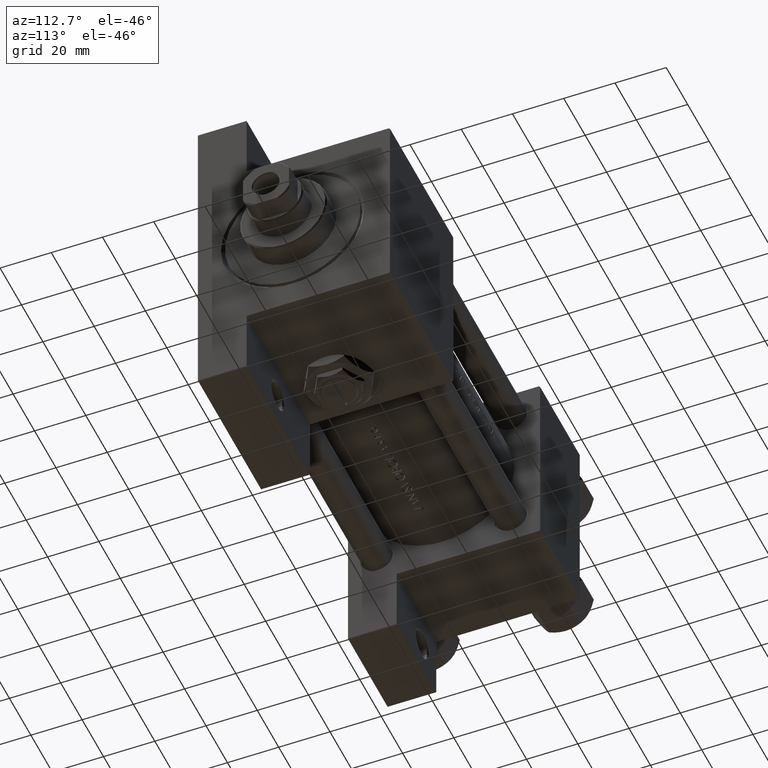
[diagram: clean part render]
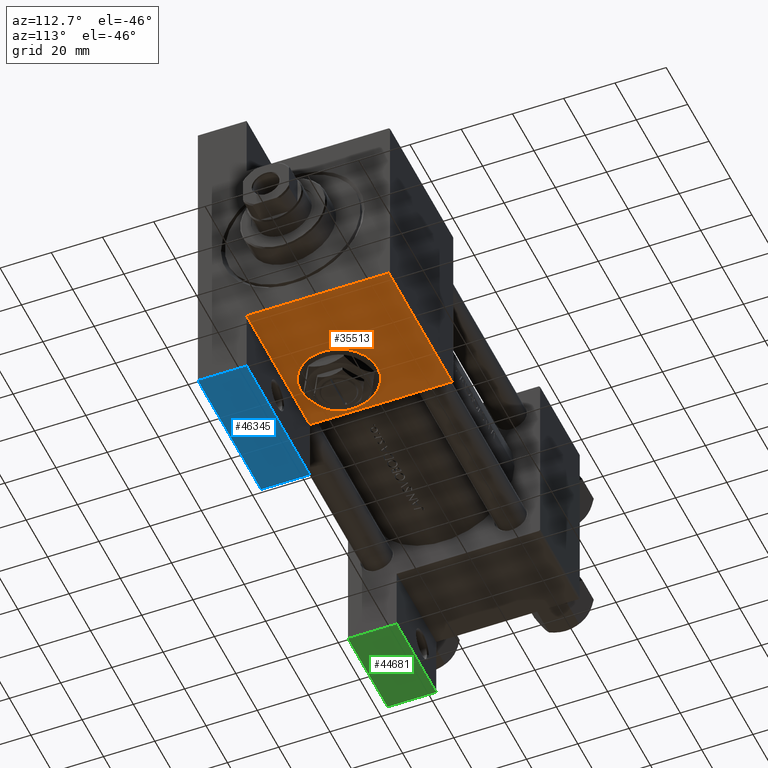
[diagram: same view with three faces highlighted in distinct colors, each labeled with its STEP entity id]
A machine part, auxiliary view with three faces highlighted in distinct colors.
Their STEP definitions:

[orange] entity #35513 — the highlighted planar face has unit normal (0, 0, -1).
#778 = ORIENTED_EDGE ( 'NONE', *, *, #10280, .F. ) ;
#1995 = VERTEX_POINT ( 'NONE', #36362 ) ;
#2141 = EDGE_CURVE ( 'NONE', #1995, #33826, #22647, .T. ) ;
#2231 = EDGE_LOOP ( 'NONE', ( #31377, #778 ) ) ;
#2783 = VECTOR ( 'NONE', #27722, 1000.000000000000000 ) ;
#3431 = CARTESIAN_POINT ( 'NONE',  ( 118.0000000000000000, 37.50000000000000000, 37.49999999999999289 ) ) ;
#3714 = CARTESIAN_POINT ( 'NONE',  ( 177.0000000000000000, 37.50000000000000000, 36.99999999999999289 ) ) ;
#6026 = CARTESIAN_POINT ( 'NONE',  ( 118.0000000000000000, 37.50000000000000000, -18.50000000000000000 ) ) ;
#6051 = VECTOR ( 'NONE', #37821, 1000.000000000000000 ) ;
#6586 = ORIENTED_EDGE ( 'NONE', *, *, #27930, .F. ) ;
#7001 = FACE_BOUND ( 'NONE', #2231, .T. ) ;
#7691 = CIRCLE ( 'NONE', #13239, 15.00000000000002487 ) ;
#7823 = AXIS2_PLACEMENT_3D ( 'NONE', #26921, #30149, #34117 ) ;
#7976 = PLANE ( 'NONE',  #7823 ) ;
#9575 = DIRECTION ( 'NONE',  ( 0.000000000000000000, 1.000000000000000000, 0.000000000000000000 ) ) ;
#9828 = DIRECTION ( 'NONE',  ( 0.000000000000000000, 0.000000000000000000, 1.000000000000000000 ) ) ;
#10280 = EDGE_CURVE ( 'NONE', #21302, #39748, #15742, .T. ) ;
#11021 = VECTOR ( 'NONE', #21219, 1000.000000000000000 ) ;
#11490 = EDGE_CURVE ( 'NONE', #31481, #27708, #47364, .T. ) ;
#12515 = LINE ( 'NONE', #24216, #2783 ) ;
#13239 = AXIS2_PLACEMENT_3D ( 'NONE', #22234, #38133, #37160 ) ;
#15742 = CIRCLE ( 'NONE', #39606, 15.00000000000002487 ) ;
#16141 = ORIENTED_EDGE ( 'NONE', *, *, #2141, .T. ) ;
#20366 = CARTESIAN_POINT ( 'NONE',  ( 177.0000000000000000, 37.50000000000000000, 36.99999999999999289 ) ) ;
#21219 = DIRECTION ( 'NONE',  ( -1.000000000000000000, 1.176083712526648949E-16, -0.000000000000000000 ) ) ;
#21302 = VERTEX_POINT ( 'NONE', #27846 ) ;
#22164 = ORIENTED_EDGE ( 'NONE', *, *, #25899, .T. ) ;
#22234 = CARTESIAN_POINT ( 'NONE',  ( 135.0000000000000000, 37.50000000000000000, 0.000000000000000000 ) ) ;
#22647 = LINE ( 'NONE', #3714, #6051 ) ;
#24216 = CARTESIAN_POINT ( 'NONE',  ( 177.0000000000000000, 37.50000000000000000, 37.49999999999999289 ) ) ;
#25899 = EDGE_CURVE ( 'NONE', #33826, #31481, #12515, .T. ) ;
#26350 = DIRECTION ( 'NONE',  ( 0.000000000000000000, 0.000000000000000000, -1.000000000000000000 ) ) ;
#26921 = CARTESIAN_POINT ( 'NONE',  ( 177.0000000000000000, 37.50000000000000000, 37.49999999999999289 ) ) ;
#27708 = VERTEX_POINT ( 'NONE', #36917 ) ;
#27722 = DIRECTION ( 'NONE',  ( 0.000000000000000000, 0.000000000000000000, -1.000000000000000000 ) ) ;
#27846 = CARTESIAN_POINT ( 'NONE',  ( 135.0000000000000000, 37.50000000000000000, -15.00000000000002487 ) ) ;
#27930 = EDGE_CURVE ( 'NONE', #1995, #27708, #32823, .T. ) ;
#30149 = DIRECTION ( 'NONE',  ( -0.000000000000000000, 1.000000000000000000, 0.000000000000000000 ) ) ;
#30747 = VECTOR ( 'NONE', #26350, 1000.000000000000000 ) ;
#31377 = ORIENTED_EDGE ( 'NONE', *, *, #31483, .F. ) ;
#31481 = VERTEX_POINT ( 'NONE', #34157 ) ;
#31483 = EDGE_CURVE ( 'NONE', #39748, #21302, #7691, .T. ) ;
#32823 = LINE ( 'NONE', #3431, #30747 ) ;
#33826 = VERTEX_POINT ( 'NONE', #20366 ) ;
#34078 = EDGE_LOOP ( 'NONE', ( #6586, #16141, #22164, #34766 ) ) ;
#34117 = DIRECTION ( 'NONE',  ( 0.000000000000000000, -0.000000000000000000, 1.000000000000000000 ) ) ;
#34157 = CARTESIAN_POINT ( 'NONE',  ( 177.0000000000000000, 37.49999999999999289, -18.50000000000000000 ) ) ;
#34766 = ORIENTED_EDGE ( 'NONE', *, *, #11490, .T. ) ;
#35513 = ADVANCED_FACE ( 'NONE', ( #7001, #41348 ), #7976, .T. ) ;
#35957 = CARTESIAN_POINT ( 'NONE',  ( 135.0000000000000000, 37.50000000000000000, 0.000000000000000000 ) ) ;
#36362 = CARTESIAN_POINT ( 'NONE',  ( 118.0000000000000000, 37.50000000000000000, 36.99999999999999289 ) ) ;
#36917 = CARTESIAN_POINT ( 'NONE',  ( 118.0000000000000000, 37.50000000000000000, -18.50000000000000355 ) ) ;
#37160 = DIRECTION ( 'NONE',  ( 0.000000000000000000, 0.000000000000000000, 1.000000000000000000 ) ) ;
#37821 = DIRECTION ( 'NONE',  ( 1.000000000000000000, 0.000000000000000000, 0.000000000000000000 ) ) ;
#38133 = DIRECTION ( 'NONE',  ( 0.000000000000000000, 1.000000000000000000, 0.000000000000000000 ) ) ;
#39606 = AXIS2_PLACEMENT_3D ( 'NONE', #35957, #9575, #9828 ) ;
#39748 = VERTEX_POINT ( 'NONE', #43332 ) ;
#41348 = FACE_OUTER_BOUND ( 'NONE', #34078, .T. ) ;
#43332 = CARTESIAN_POINT ( 'NONE',  ( 135.0000000000000000, 37.50000000000000000, 15.00000000000002487 ) ) ;
#47364 = LINE ( 'NONE', #6026, #11021 ) ;

[blue] entity #46345 — the highlighted planar face has unit normal (0, 0, -1).
#338 = LINE ( 'NONE', #8064, #26463 ) ;
#1353 = VERTEX_POINT ( 'NONE', #31371 ) ;
#1614 = ORIENTED_EDGE ( 'NONE', *, *, #6077, .T. ) ;
#3461 = VERTEX_POINT ( 'NONE', #45658 ) ;
#3773 = VECTOR ( 'NONE', #41249, 1000.000000000000000 ) ;
#6077 = EDGE_CURVE ( 'NONE', #27829, #1353, #31089, .T. ) ;
#6649 = ORIENTED_EDGE ( 'NONE', *, *, #33990, .F. ) ;
#7271 = LINE ( 'NONE', #34138, #31887 ) ;
#8057 = PLANE ( 'NONE',  #8859 ) ;
#8064 = CARTESIAN_POINT ( 'NONE',  ( 177.0000000000000284, 63.50000000000000000, -18.50000000000000000 ) ) ;
#8859 = AXIS2_PLACEMENT_3D ( 'NONE', #15283, #34196, #19500 ) ;
#15283 = CARTESIAN_POINT ( 'NONE',  ( 118.0000000000000000, 63.50000000000000000, -18.50000000000000000 ) ) ;
#17624 = CARTESIAN_POINT ( 'NONE',  ( 177.0000000000000284, 63.50000000000000000, -37.50000000000000000 ) ) ;
#19500 = DIRECTION ( 'NONE',  ( 0.000000000000000000, -0.000000000000000000, 1.000000000000000000 ) ) ;
#20181 = VERTEX_POINT ( 'NONE', #17624 ) ;
#20824 = EDGE_LOOP ( 'NONE', ( #6649, #27723, #1614, #43614 ) ) ;
#22287 = EDGE_CURVE ( 'NONE', #1353, #20181, #338, .T. ) ;
#23260 = DIRECTION ( 'NONE',  ( 0.000000000000000000, 0.000000000000000000, -1.000000000000000000 ) ) ;
#24354 = CARTESIAN_POINT ( 'NONE',  ( 118.0000000000000000, 63.50000000000000000, -18.50000000000000000 ) ) ;
#26463 = VECTOR ( 'NONE', #23260, 1000.000000000000000 ) ;
#27723 = ORIENTED_EDGE ( 'NONE', *, *, #45685, .F. ) ;
#27829 = VERTEX_POINT ( 'NONE', #40054 ) ;
#31089 = LINE ( 'NONE', #24354, #41923 ) ;
#31371 = CARTESIAN_POINT ( 'NONE',  ( 177.0000000000000284, 63.50000000000000000, -18.50000000000000000 ) ) ;
#31887 = VECTOR ( 'NONE', #42353, 1000.000000000000000 ) ;
#33990 = EDGE_CURVE ( 'NONE', #3461, #20181, #41727, .T. ) ;
#34138 = CARTESIAN_POINT ( 'NONE',  ( 118.0000000000000000, 63.50000000000000000, -18.50000000000000000 ) ) ;
#34196 = DIRECTION ( 'NONE',  ( -0.000000000000000000, 1.000000000000000000, 0.000000000000000000 ) ) ;
#40054 = CARTESIAN_POINT ( 'NONE',  ( 118.0000000000000000, 63.50000000000000000, -18.50000000000000000 ) ) ;
#41249 = DIRECTION ( 'NONE',  ( 1.000000000000000000, 0.000000000000000000, 0.000000000000000000 ) ) ;
#41727 = LINE ( 'NONE', #42222, #3773 ) ;
#41923 = VECTOR ( 'NONE', #47260, 1000.000000000000000 ) ;
#42222 = CARTESIAN_POINT ( 'NONE',  ( 118.0000000000000000, 63.50000000000000000, -37.50000000000000000 ) ) ;
#42353 = DIRECTION ( 'NONE',  ( 0.000000000000000000, 0.000000000000000000, -1.000000000000000000 ) ) ;
#42418 = FACE_OUTER_BOUND ( 'NONE', #20824, .T. ) ;
#43614 = ORIENTED_EDGE ( 'NONE', *, *, #22287, .T. ) ;
#45658 = CARTESIAN_POINT ( 'NONE',  ( 118.0000000000000000, 63.50000000000000000, -37.50000000000000000 ) ) ;
#45685 = EDGE_CURVE ( 'NONE', #27829, #3461, #7271, .T. ) ;
#46345 = ADVANCED_FACE ( 'NONE', ( #42418 ), #8057, .T. ) ;
#47260 = DIRECTION ( 'NONE',  ( 1.000000000000000000, 0.000000000000000000, 0.000000000000000000 ) ) ;

[green] entity #44681 — the highlighted planar face has unit normal (0, -0, -1).
#48 = ORIENTED_EDGE ( 'NONE', *, *, #7218, .F. ) ;
#2034 = CARTESIAN_POINT ( 'NONE',  ( 37.00000000000001421, 63.50000000000000000, -18.50000000000000355 ) ) ;
#2462 = ORIENTED_EDGE ( 'NONE', *, *, #37157, .F. ) ;
#4685 = DIRECTION ( 'NONE',  ( 0.000000000000000000, 1.000000000000000000, -1.734723475976806848E-16 ) ) ;
#6155 = CARTESIAN_POINT ( 'NONE',  ( 1.595073532467135441E-14, 63.50000000000000000, -18.50000000000000355 ) ) ;
#7218 = EDGE_CURVE ( 'NONE', #16228, #40859, #41470, .T. ) ;
#8000 = AXIS2_PLACEMENT_3D ( 'NONE', #38787, #4685, #45749 ) ;
#8415 = FACE_OUTER_BOUND ( 'NONE', #35604, .T. ) ;
#10364 = CARTESIAN_POINT ( 'NONE',  ( 1.595073532467135441E-14, 63.50000000000001421, 26.72167621838005047 ) ) ;
#10583 = VERTEX_POINT ( 'NONE', #2034 ) ;
#10878 = EDGE_CURVE ( 'NONE', #10583, #21524, #28829, .T. ) ;
#11873 = EDGE_CURVE ( 'NONE', #40859, #21524, #15641, .T. ) ;
#13865 = DIRECTION ( 'NONE',  ( 0.000000000000000000, -1.734723475976806848E-16, -1.000000000000000000 ) ) ;
#15641 = LINE ( 'NONE', #27374, #47604 ) ;
#16228 = VERTEX_POINT ( 'NONE', #28189 ) ;
#17486 = ORIENTED_EDGE ( 'NONE', *, *, #10878, .T. ) ;
#19467 = CARTESIAN_POINT ( 'NONE',  ( 1.595073532467135441E-14, 63.50000000000000000, -37.50000000000002132 ) ) ;
#19729 = VECTOR ( 'NONE', #13865, 1000.000000000000000 ) ;
#21524 = VERTEX_POINT ( 'NONE', #38925 ) ;
#22066 = DIRECTION ( 'NONE',  ( 0.000000000000000000, -1.734723475976806848E-16, -1.000000000000000000 ) ) ;
#27114 = PLANE ( 'NONE',  #8000 ) ;
#27374 = CARTESIAN_POINT ( 'NONE',  ( 1.595073532467135441E-14, 63.50000000000000000, -37.50000000000002132 ) ) ;
#28189 = CARTESIAN_POINT ( 'NONE',  ( 1.595073532467135441E-14, 63.50000000000000000, -18.50000000000000355 ) ) ;
#28829 = LINE ( 'NONE', #44477, #19729 ) ;
#29269 = VECTOR ( 'NONE', #22066, 1000.000000000000000 ) ;
#29315 = LINE ( 'NONE', #6155, #36475 ) ;
#35604 = EDGE_LOOP ( 'NONE', ( #2462, #17486, #43198, #48 ) ) ;
#36475 = VECTOR ( 'NONE', #36775, 1000.000000000000000 ) ;
#36775 = DIRECTION ( 'NONE',  ( -1.000000000000000000, 0.000000000000000000, 0.000000000000000000 ) ) ;
#37157 = EDGE_CURVE ( 'NONE', #10583, #16228, #29315, .T. ) ;
#38787 = CARTESIAN_POINT ( 'NONE',  ( 1.595073532467135441E-14, 63.50000000000001421, 26.72167621838005047 ) ) ;
#38925 = CARTESIAN_POINT ( 'NONE',  ( 37.00000000000001421, 63.50000000000000000, -37.50000000000002132 ) ) ;
#40859 = VERTEX_POINT ( 'NONE', #19467 ) ;
#41470 = LINE ( 'NONE', #10364, #29269 ) ;
#42288 = DIRECTION ( 'NONE',  ( 1.000000000000000000, 0.000000000000000000, 0.000000000000000000 ) ) ;
#43198 = ORIENTED_EDGE ( 'NONE', *, *, #11873, .F. ) ;
#44477 = CARTESIAN_POINT ( 'NONE',  ( 37.00000000000001421, 63.50000000000001421, 26.72167621838005047 ) ) ;
#44681 = ADVANCED_FACE ( 'NONE', ( #8415 ), #27114, .T. ) ;
#45749 = DIRECTION ( 'NONE',  ( 0.000000000000000000, 1.734723475976806848E-16, 1.000000000000000000 ) ) ;
#47604 = VECTOR ( 'NONE', #42288, 1000.000000000000000 ) ;